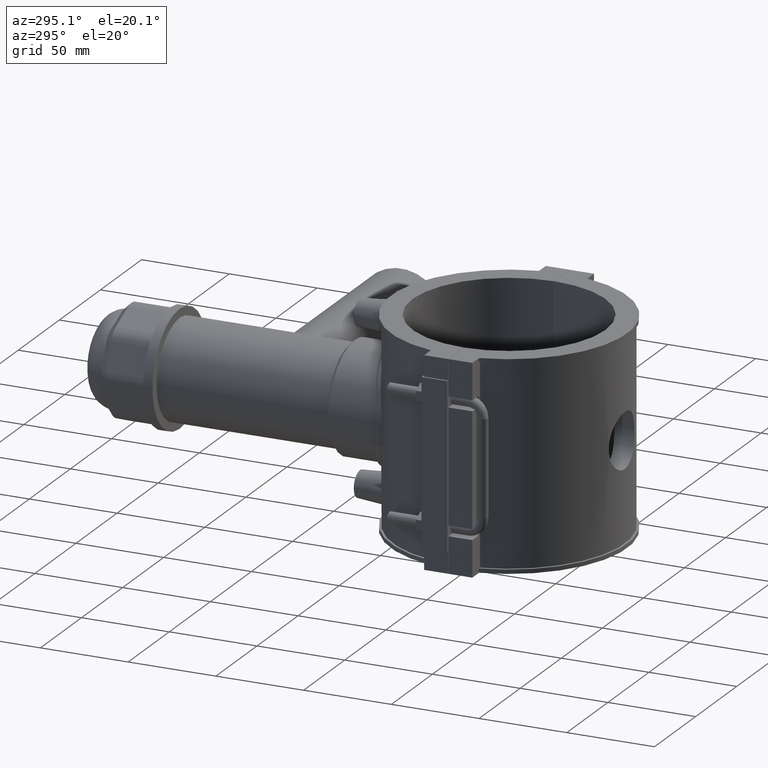
[diagram: clean part render]
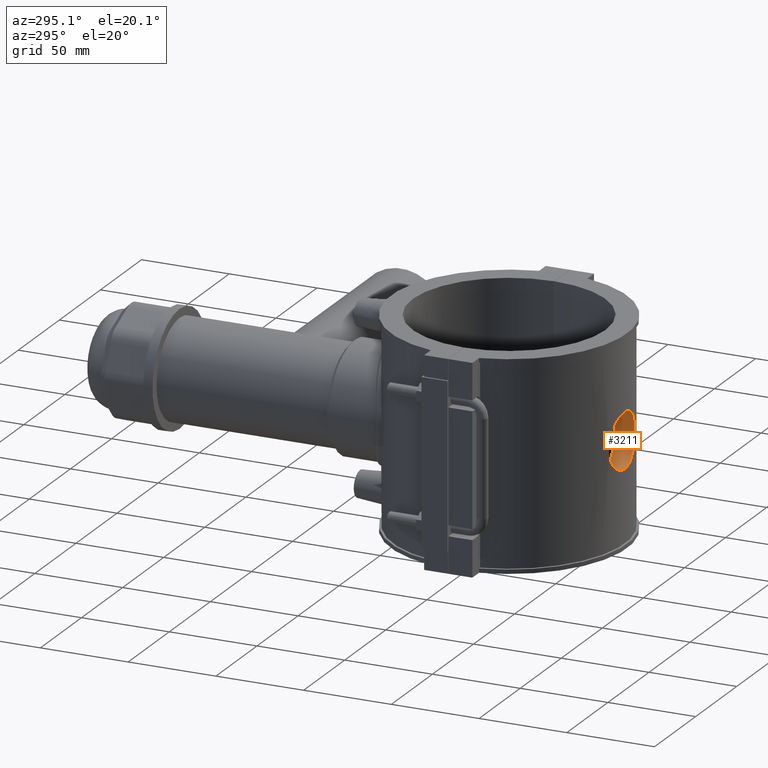
[diagram: same view with one face highlighted and labeled with its STEP entity id]
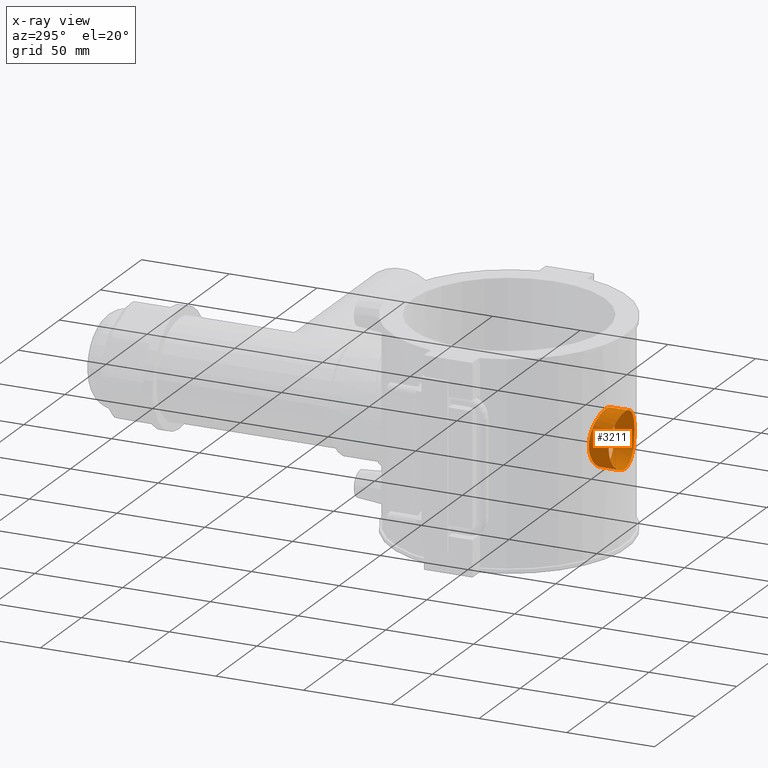
[diagram: x-ray of the same camera — body ghosted, the highlighted face saturated]
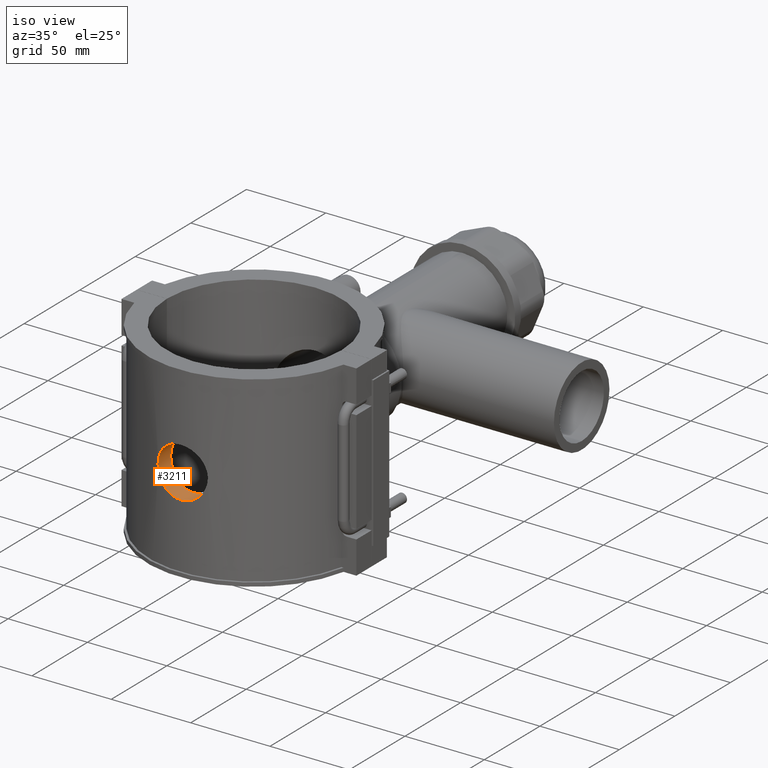
[diagram: same view with one face highlighted and labeled with its STEP entity id]
A machine part, auxiliary view. The second image highlights one B-rep face of the part: STEP entity #3211.
The next image is the same camera in x-ray: the body ghosted, the highlighted face saturated — about 0% of this face is hidden behind the body in this view.
A second angle (iso view) of the same face is appended — the face is thin or edge-on in the first view.
In plain terms, the highlighted cylindrical surface (bore or boss wall) has radius 15.68 mm, axis along (0, -1, 0).
Its self-contained STEP definition (entity closure, byte-faithful):
#637=FACE_BOUND('',#1039,.T.);
#684=B_SPLINE_CURVE_WITH_KNOTS('',3,(#5088,#5089,#5090,#5091,#5092,#5093,
#5094,#5095,#5096,#5097,#5098,#5099,#5100,#5101,#5102,#5103,#5104,#5105,
#5106,#5107,#5108,#5109,#5110,#5111,#5112,#5113,#5114,#5115,#5116,#5117,
#5118,#5119,#5120,#5121,#5122,#5123,#5124,#5125,#5126,#5127,#5128,#5129,
#5130,#5131,#5132,#5133,#5134,#5135,#5136,#5137,#5138,#5139,#5140,#5141,
#5142,#5143,#5144,#5145,#5146,#5147,#5148,#5149,#5150,#5151,#5152,#5153),
 .UNSPECIFIED.,.T.,.F.,(4,2,2,2,2,2,2,2,2,2,2,2,2,2,2,2,2,2,2,2,2,2,2,2,
2,2,2,2,2,2,2,2,4),(0.,0.296563875466227,0.593127750932455,0.889691626398682,
1.18625550186491,1.48278575986581,1.77931601786671,2.07584627586761,2.37237653386851,
2.66890679186941,2.9654370498703,3.2619673078712,3.5584975658721,3.85506144133833,
4.15162531680456,4.44818919227079,4.74475306773701,5.04131694320324,5.33788081866947,
5.63444469413569,5.93100856960192,6.22753882760282,6.52406908560372,6.82059934360462,
7.11712960160552,7.41365985960642,7.71019011760732,8.00672037560822,8.30325063360912,
8.59981450907534,8.89637838454157,9.1929422600078,9.48950613547403),
 .UNSPECIFIED.);
#685=B_SPLINE_CURVE_WITH_KNOTS('',3,(#5155,#5156,#5157,#5158,#5159,#5160,
#5161,#5162,#5163,#5164,#5165,#5166,#5167,#5168,#5169,#5170,#5171,#5172,
#5173,#5174,#5175,#5176,#5177,#5178,#5179,#5180,#5181,#5182,#5183,#5184,
#5185,#5186,#5187,#5188,#5189,#5190,#5191,#5192,#5193,#5194,#5195,#5196,
#5197,#5198,#5199,#5200,#5201,#5202,#5203,#5204,#5205,#5206,#5207,#5208,
#5209,#5210,#5211,#5212,#5213,#5214,#5215,#5216,#5217,#5218,#5219,#5220),
 .UNSPECIFIED.,.T.,.F.,(4,2,2,2,2,2,2,2,2,2,2,2,2,2,2,2,2,2,2,2,2,2,2,2,
2,2,2,2,2,2,2,2,4),(0.,0.297144208269426,0.594288416538853,0.891432624808279,
1.18857683307771,1.48564947203075,1.78272211098379,2.07979474993683,2.37686738888987,
2.67394002784291,2.97101266679596,3.268085305749,3.56515794470204,3.86230215297147,
4.15944636124089,4.45659056951032,4.75373477777975,5.05087898604917,5.3480231943186,
5.64516740258803,5.94231161085745,6.23938424981049,6.53645688876354,6.83352952771658,
7.13060216666962,7.42767480562266,7.7247474445757,8.02182008352874,8.31889272248179,
8.61603693075121,8.91318113902064,9.21032534729007,9.50746955555949),
 .UNSPECIFIED.);
#742=CYLINDRICAL_SURFACE('',#3456,15.68);
#831=FACE_OUTER_BOUND('',#1038,.T.);
#1038=EDGE_LOOP('',(#2338));
#1039=EDGE_LOOP('',(#2339));
#1413=VERTEX_POINT('',#5087);
#1414=VERTEX_POINT('',#5154);
#1763=EDGE_CURVE('',#1413,#1413,#684,.T.);
#1764=EDGE_CURVE('',#1414,#1414,#685,.T.);
#2338=ORIENTED_EDGE('',*,*,#1763,.F.);
#2339=ORIENTED_EDGE('',*,*,#1764,.F.);
#3211=ADVANCED_FACE('',(#831,#637),#742,.F.);
#3456=AXIS2_PLACEMENT_3D('',#5086,#3939,#3940);
#3939=DIRECTION('center_axis',(0.,-1.,0.));
#3940=DIRECTION('ref_axis',(1.,0.,0.));
#5086=CARTESIAN_POINT('Origin',(0.,0.,0.));
#5087=CARTESIAN_POINT('',(15.68,-64.1103548578543,0.));
#5088=CARTESIAN_POINT('Ctrl Pts',(15.68,-64.1103548578543,0.));
#5089=CARTESIAN_POINT('Ctrl Pts',(15.68,-64.1103548578543,-0.988546251554091));
#5090=CARTESIAN_POINT('Ctrl Pts',(15.5850087326511,-64.1338407291311,-2.00958776819716));
#5091=CARTESIAN_POINT('Ctrl Pts',(15.1863101186619,-64.2294170051241,-4.03818340396453));
#5092=CARTESIAN_POINT('Ctrl Pts',(14.8827021093981,-64.3014292133957,-5.04576072893045));
#5093=CARTESIAN_POINT('Ctrl Pts',(14.0814573062221,-64.4816343832848,-6.97618043489832));
#5094=CARTESIAN_POINT('Ctrl Pts',(13.5831837902416,-64.589790921803,-7.90063266366072));
#5095=CARTESIAN_POINT('Ctrl Pts',(12.4332077788121,-64.8209789921638,-9.60927795077908));
#5096=CARTESIAN_POINT('Ctrl Pts',(11.7814217784567,-64.9437734197019,-10.3934468795534));
#5097=CARTESIAN_POINT('Ctrl Pts',(10.3935255475941,-65.1802893476943,-11.781343110416));
#5098=CARTESIAN_POINT('Ctrl Pts',(9.60939328313264,-65.3023929186199,-12.4331202302505));
#5099=CARTESIAN_POINT('Ctrl Pts',(7.90072532773865,-65.5310727781705,-13.5831313489686));
#5100=CARTESIAN_POINT('Ctrl Pts',(6.97621381436831,-65.6374281654528,-14.0814451846236));
#5101=CARTESIAN_POINT('Ctrl Pts',(5.04567794343743,-65.8139853627539,-14.8827347375424));
#5102=CARTESIAN_POINT('Ctrl Pts',(4.03804552177073,-65.884179951295,-15.1863471795047));
#5103=CARTESIAN_POINT('Ctrl Pts',(2.0094346459336,-65.9772169153438,-15.5850288641697));
#5104=CARTESIAN_POINT('Ctrl Pts',(0.988434193336333,-66.,-15.68));
#5105=CARTESIAN_POINT('Ctrl Pts',(-0.988434193336329,-66.,-15.68));
#5106=CARTESIAN_POINT('Ctrl Pts',(-2.00943464593359,-65.9772169153438,-15.5850288641697));
#5107=CARTESIAN_POINT('Ctrl Pts',(-4.03804552177073,-65.884179951295,-15.1863471795047));
#5108=CARTESIAN_POINT('Ctrl Pts',(-5.04567794343743,-65.8139853627539,-14.8827347375424));
#5109=CARTESIAN_POINT('Ctrl Pts',(-6.97621381436831,-65.6374281654528,-14.0814451846236));
#5110=CARTESIAN_POINT('Ctrl Pts',(-7.90072532773865,-65.5310727781705,-13.5831313489686));
#5111=CARTESIAN_POINT('Ctrl Pts',(-9.60939328313264,-65.3023929186199,-12.4331202302505));
#5112=CARTESIAN_POINT('Ctrl Pts',(-10.3935255475941,-65.1802893476943,-11.781343110416));
#5113=CARTESIAN_POINT('Ctrl Pts',(-11.7814217784567,-64.9437734197019,-10.3934468795534));
#5114=CARTESIAN_POINT('Ctrl Pts',(-12.4332077788121,-64.8209789921638,-9.60927795077908));
#5115=CARTESIAN_POINT('Ctrl Pts',(-13.5831837902416,-64.589790921803,-7.90063266366072));
#5116=CARTESIAN_POINT('Ctrl Pts',(-14.0814573062221,-64.4816343832848,-6.97618043489832));
#5117=CARTESIAN_POINT('Ctrl Pts',(-14.8827021093981,-64.3014292133957,-5.04576072893044));
#5118=CARTESIAN_POINT('Ctrl Pts',(-15.1863101186619,-64.2294170051241,-4.03818340396453));
#5119=CARTESIAN_POINT('Ctrl Pts',(-15.5850087326511,-64.1338407291311,-2.00958776819716));
#5120=CARTESIAN_POINT('Ctrl Pts',(-15.68,-64.1103548578543,-0.988546251554092));
#5121=CARTESIAN_POINT('Ctrl Pts',(-15.68,-64.1103548578543,0.988546251554091));
#5122=CARTESIAN_POINT('Ctrl Pts',(-15.5850087326511,-64.1338407291311,2.00958776819716));
#5123=CARTESIAN_POINT('Ctrl Pts',(-15.1863101186619,-64.2294170051241,4.03818340396453));
#5124=CARTESIAN_POINT('Ctrl Pts',(-14.8827021093981,-64.3014292133957,5.04576072893045));
#5125=CARTESIAN_POINT('Ctrl Pts',(-14.0814573062221,-64.4816343832848,6.97618043489832));
#5126=CARTESIAN_POINT('Ctrl Pts',(-13.5831837902416,-64.589790921803,7.90063266366072));
#5127=CARTESIAN_POINT('Ctrl Pts',(-12.4332077788121,-64.8209789921638,9.60927795077908));
#5128=CARTESIAN_POINT('Ctrl Pts',(-11.7814217784567,-64.9437734197019,10.3934468795534));
#5129=CARTESIAN_POINT('Ctrl Pts',(-10.3935255475941,-65.1802893476943,11.781343110416));
#5130=CARTESIAN_POINT('Ctrl Pts',(-9.60939328313265,-65.3023929186199,12.4331202302505));
#5131=CARTESIAN_POINT('Ctrl Pts',(-7.90072532773866,-65.5310727781705,13.5831313489686));
#5132=CARTESIAN_POINT('Ctrl Pts',(-6.97621381436832,-65.6374281654528,14.0814451846236));
#5133=CARTESIAN_POINT('Ctrl Pts',(-5.04567794343744,-65.8139853627539,14.8827347375424));
#5134=CARTESIAN_POINT('Ctrl Pts',(-4.03804552177073,-65.884179951295,15.1863471795047));
#5135=CARTESIAN_POINT('Ctrl Pts',(-2.0094346459336,-65.9772169153438,15.5850288641697));
#5136=CARTESIAN_POINT('Ctrl Pts',(-0.988434193336334,-66.,15.68));
#5137=CARTESIAN_POINT('Ctrl Pts',(0.988434193336329,-66.,15.68));
#5138=CARTESIAN_POINT('Ctrl Pts',(2.00943464593359,-65.9772169153438,15.5850288641697));
#5139=CARTESIAN_POINT('Ctrl Pts',(4.03804552177073,-65.884179951295,15.1863471795047));
#5140=CARTESIAN_POINT('Ctrl Pts',(5.04567794343743,-65.8139853627539,14.8827347375424));
#5141=CARTESIAN_POINT('Ctrl Pts',(6.97621381436831,-65.6374281654528,14.0814451846236));
#5142=CARTESIAN_POINT('Ctrl Pts',(7.90072532773865,-65.5310727781705,13.5831313489686));
#5143=CARTESIAN_POINT('Ctrl Pts',(9.60939328313263,-65.3023929186199,12.4331202302505));
#5144=CARTESIAN_POINT('Ctrl Pts',(10.3935255475941,-65.1802893476943,11.781343110416));
#5145=CARTESIAN_POINT('Ctrl Pts',(11.7814217784567,-64.9437734197019,10.3934468795534));
#5146=CARTESIAN_POINT('Ctrl Pts',(12.4332077788121,-64.8209789921638,9.60927795077908));
#5147=CARTESIAN_POINT('Ctrl Pts',(13.5831837902416,-64.589790921803,7.90063266366072));
#5148=CARTESIAN_POINT('Ctrl Pts',(14.0814573062221,-64.4816343832848,6.97618043489832));
#5149=CARTESIAN_POINT('Ctrl Pts',(14.8827021093981,-64.3014292133957,5.04576072893045));
#5150=CARTESIAN_POINT('Ctrl Pts',(15.1863101186619,-64.2294170051241,4.03818340396454));
#5151=CARTESIAN_POINT('Ctrl Pts',(15.5850087326511,-64.1338407291311,2.00958776819717));
#5152=CARTESIAN_POINT('Ctrl Pts',(15.68,-64.1103548578543,0.988546251554095));
#5153=CARTESIAN_POINT('Ctrl Pts',(15.68,-64.1103548578543,2.77555756156289E-16));
#5154=CARTESIAN_POINT('',(15.68,-52.7175264973614,-2.77555756156289E-16));
#5155=CARTESIAN_POINT('Ctrl Pts',(15.68,-52.7175264973614,-2.77555756156289E-16));
#5156=CARTESIAN_POINT('Ctrl Pts',(15.68,-52.7175264973614,0.990480694231421));
#5157=CARTESIAN_POINT('Ctrl Pts',(15.5846373254499,-52.746207264734,2.01290176790925));
#5158=CARTESIAN_POINT('Ctrl Pts',(15.1850715318854,-52.8626229382127,4.04305536823509));
#5159=CARTESIAN_POINT('Ctrl Pts',(14.8809748505162,-52.9502526755315,5.05081487134343));
#5160=CARTESIAN_POINT('Ctrl Pts',(14.07923491481,-53.1690492932834,6.98063767389646));
#5161=CARTESIAN_POINT('Ctrl Pts',(13.5809551196607,-53.3001637160247,7.90434314647605));
#5162=CARTESIAN_POINT('Ctrl Pts',(12.431637151488,-53.5798860750143,9.61121117917902));
#5163=CARTESIAN_POINT('Ctrl Pts',(11.7805087691678,-53.7282077959576,10.3943598888423));
#5164=CARTESIAN_POINT('Ctrl Pts',(10.3945268207983,-54.013463792211,11.7803418372119));
#5165=CARTESIAN_POINT('Ctrl Pts',(9.61145645077499,-54.1605690881619,12.4314508224784));
#5166=CARTESIAN_POINT('Ctrl Pts',(7.90454184777664,-54.4358848300262,13.580842494435));
#5167=CARTESIAN_POINT('Ctrl Pts',(6.98071150310746,-54.5638363290412,14.0792078159597));
#5168=CARTESIAN_POINT('Ctrl Pts',(5.05064212921114,-54.7762136516227,14.8810430423131));
#5169=CARTESIAN_POINT('Ctrl Pts',(4.04276473357668,-54.8606379928072,15.1851498213668));
#5170=CARTESIAN_POINT('Ctrl Pts',(2.01257689591603,-54.9725666301579,15.5846801708534));
#5171=CARTESIAN_POINT('Ctrl Pts',(0.990242129843473,-55.,15.68));
#5172=CARTESIAN_POINT('Ctrl Pts',(-0.990242129843473,-55.,15.68));
#5173=CARTESIAN_POINT('Ctrl Pts',(-2.01257689591603,-54.9725666301579,15.5846801708534));
#5174=CARTESIAN_POINT('Ctrl Pts',(-4.04276473357668,-54.8606379928072,15.1851498213668));
#5175=CARTESIAN_POINT('Ctrl Pts',(-5.05064212921114,-54.7762136516227,14.8810430423131));
#5176=CARTESIAN_POINT('Ctrl Pts',(-6.98071150310746,-54.5638363290412,14.0792078159597));
#5177=CARTESIAN_POINT('Ctrl Pts',(-7.90454184777663,-54.4358848300262,13.580842494435));
#5178=CARTESIAN_POINT('Ctrl Pts',(-9.61145645077498,-54.1605690881619,12.4314508224784));
#5179=CARTESIAN_POINT('Ctrl Pts',(-10.3945268207982,-54.013463792211,11.7803418372119));
#5180=CARTESIAN_POINT('Ctrl Pts',(-11.7805087691678,-53.7282077959576,10.3943598888423));
#5181=CARTESIAN_POINT('Ctrl Pts',(-12.431637151488,-53.5798860750143,9.61121117917902));
#5182=CARTESIAN_POINT('Ctrl Pts',(-13.5809551196607,-53.3001637160247,7.90434314647605));
#5183=CARTESIAN_POINT('Ctrl Pts',(-14.07923491481,-53.1690492932834,6.98063767389646));
#5184=CARTESIAN_POINT('Ctrl Pts',(-14.8809748505162,-52.9502526755315,5.05081487134343));
#5185=CARTESIAN_POINT('Ctrl Pts',(-15.1850715318854,-52.8626229382127,4.04305536823508));
#5186=CARTESIAN_POINT('Ctrl Pts',(-15.5846373254499,-52.746207264734,2.01290176790924));
#5187=CARTESIAN_POINT('Ctrl Pts',(-15.68,-52.7175264973614,0.99048069423142));
#5188=CARTESIAN_POINT('Ctrl Pts',(-15.68,-52.7175264973614,-0.99048069423142));
#5189=CARTESIAN_POINT('Ctrl Pts',(-15.5846373254499,-52.746207264734,-2.01290176790924));
#5190=CARTESIAN_POINT('Ctrl Pts',(-15.1850715318854,-52.8626229382127,-4.04305536823508));
#5191=CARTESIAN_POINT('Ctrl Pts',(-14.8809748505162,-52.9502526755315,-5.05081487134343));
#5192=CARTESIAN_POINT('Ctrl Pts',(-14.07923491481,-53.1690492932834,-6.98063767389646));
#5193=CARTESIAN_POINT('Ctrl Pts',(-13.5809551196607,-53.3001637160247,-7.90434314647605));
#5194=CARTESIAN_POINT('Ctrl Pts',(-12.431637151488,-53.5798860750143,-9.61121117917901));
#5195=CARTESIAN_POINT('Ctrl Pts',(-11.7805087691678,-53.7282077959576,-10.3943598888423));
#5196=CARTESIAN_POINT('Ctrl Pts',(-10.3945268207983,-54.013463792211,-11.7803418372119));
#5197=CARTESIAN_POINT('Ctrl Pts',(-9.61145645077499,-54.1605690881619,-12.4314508224784));
#5198=CARTESIAN_POINT('Ctrl Pts',(-7.90454184777664,-54.4358848300262,-13.580842494435));
#5199=CARTESIAN_POINT('Ctrl Pts',(-6.98071150310747,-54.5638363290412,-14.0792078159597));
#5200=CARTESIAN_POINT('Ctrl Pts',(-5.05064212921114,-54.7762136516227,-14.8810430423131));
#5201=CARTESIAN_POINT('Ctrl Pts',(-4.04276473357669,-54.8606379928072,-15.1851498213668));
#5202=CARTESIAN_POINT('Ctrl Pts',(-2.01257689591604,-54.9725666301579,-15.5846801708534));
#5203=CARTESIAN_POINT('Ctrl Pts',(-0.990242129843478,-55.,-15.68));
#5204=CARTESIAN_POINT('Ctrl Pts',(0.990242129843472,-55.,-15.68));
#5205=CARTESIAN_POINT('Ctrl Pts',(2.01257689591603,-54.9725666301579,-15.5846801708534));
#5206=CARTESIAN_POINT('Ctrl Pts',(4.04276473357668,-54.8606379928072,-15.1851498213668));
#5207=CARTESIAN_POINT('Ctrl Pts',(5.05064212921114,-54.7762136516227,-14.8810430423131));
#5208=CARTESIAN_POINT('Ctrl Pts',(6.98071150310746,-54.5638363290412,-14.0792078159597));
#5209=CARTESIAN_POINT('Ctrl Pts',(7.90454184777664,-54.4358848300262,-13.580842494435));
#5210=CARTESIAN_POINT('Ctrl Pts',(9.61145645077499,-54.1605690881619,-12.4314508224784));
#5211=CARTESIAN_POINT('Ctrl Pts',(10.3945268207982,-54.013463792211,-11.7803418372119));
#5212=CARTESIAN_POINT('Ctrl Pts',(11.7805087691678,-53.7282077959576,-10.3943598888423));
#5213=CARTESIAN_POINT('Ctrl Pts',(12.431637151488,-53.5798860750143,-9.61121117917901));
#5214=CARTESIAN_POINT('Ctrl Pts',(13.5809551196607,-53.3001637160247,-7.90434314647604));
#5215=CARTESIAN_POINT('Ctrl Pts',(14.07923491481,-53.1690492932834,-6.98063767389645));
#5216=CARTESIAN_POINT('Ctrl Pts',(14.8809748505162,-52.9502526755315,-5.05081487134343));
#5217=CARTESIAN_POINT('Ctrl Pts',(15.1850715318854,-52.8626229382127,-4.04305536823508));
#5218=CARTESIAN_POINT('Ctrl Pts',(15.5846373254499,-52.746207264734,-2.01290176790925));
#5219=CARTESIAN_POINT('Ctrl Pts',(15.68,-52.7175264973614,-0.99048069423142));
#5220=CARTESIAN_POINT('Ctrl Pts',(15.68,-52.7175264973614,0.));